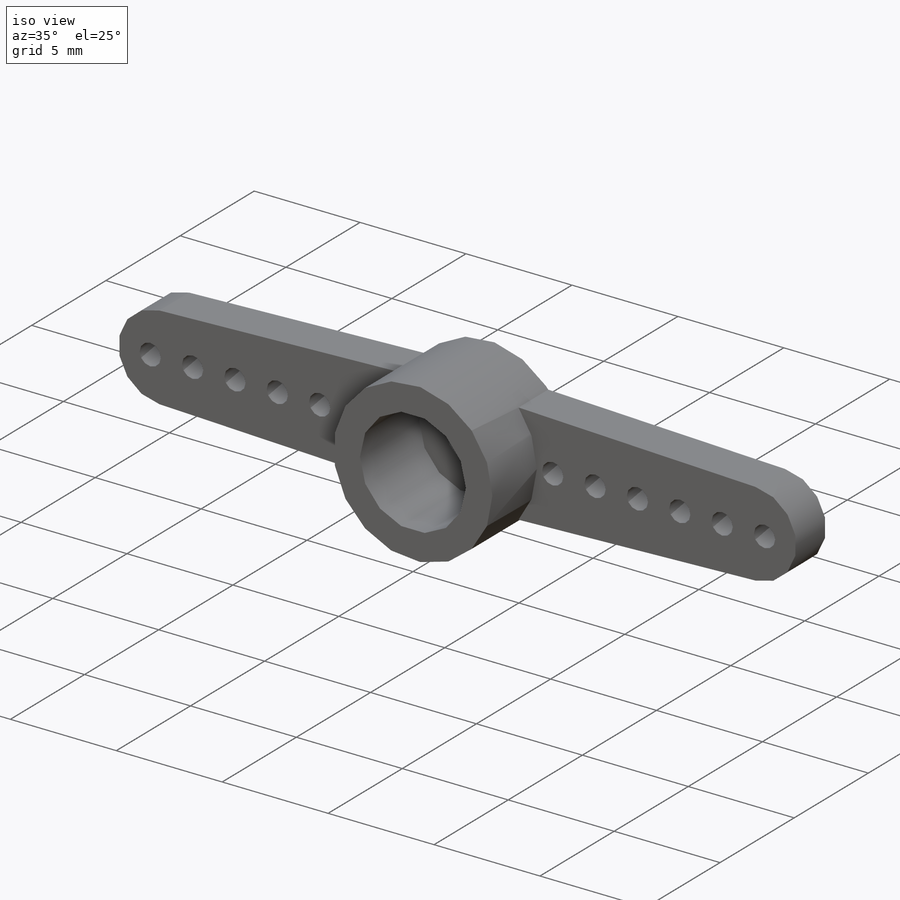
[diagram: iso view]
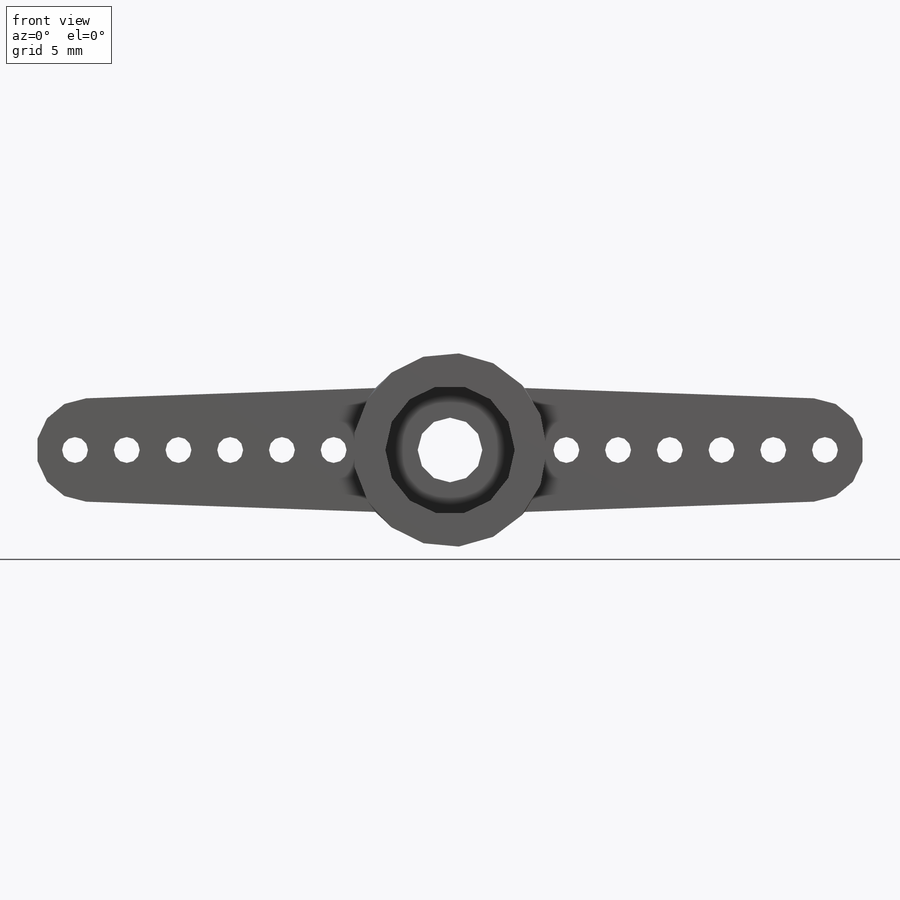
[diagram: front view]
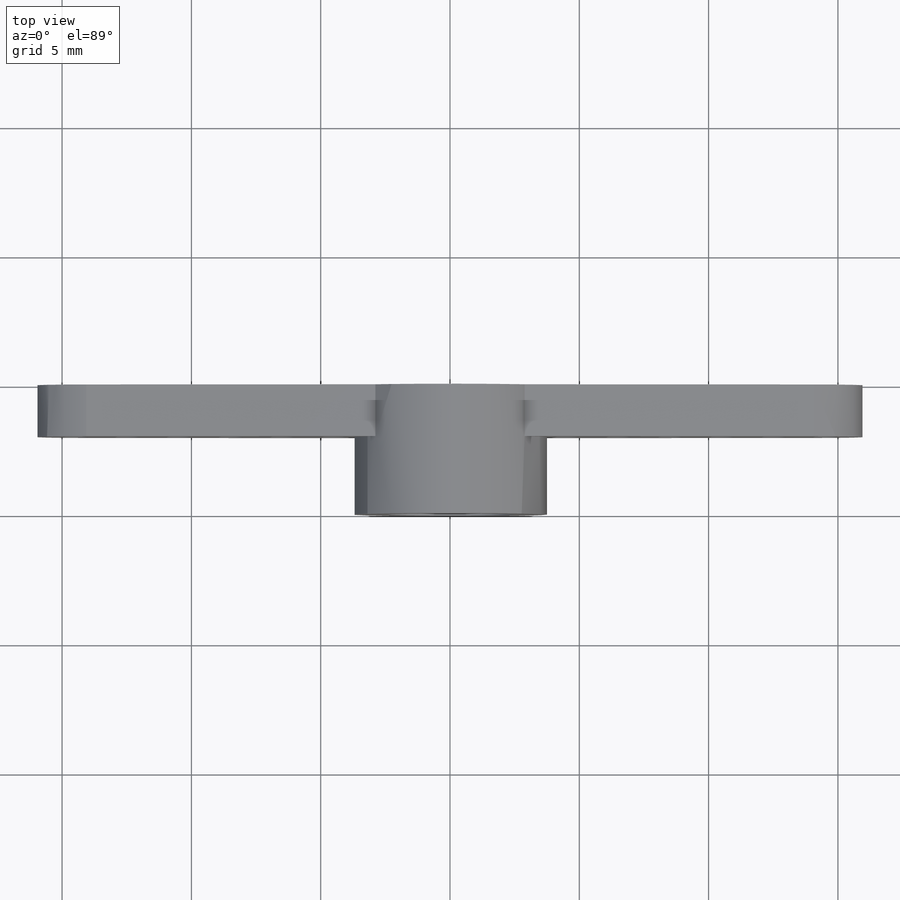
[diagram: top view]
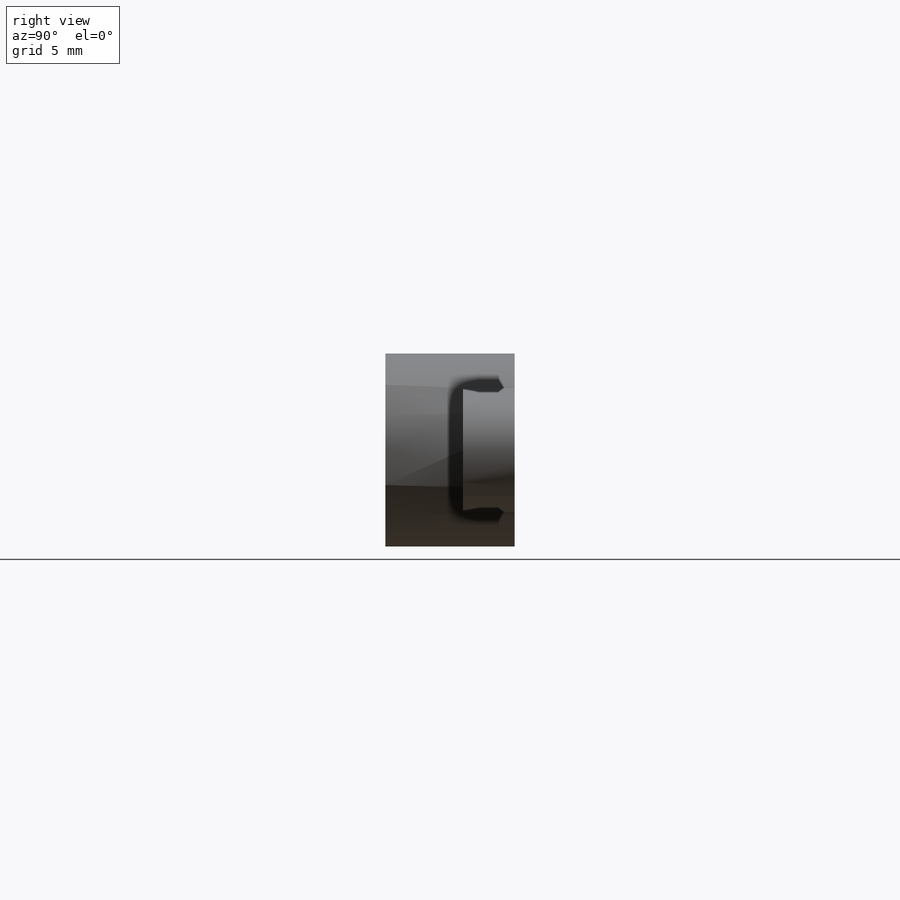
[diagram: right view]
SOLIDWORKS PART (.sldprt)
format: sldprt  version: not decoded by parser v0  size: 355,840 bytes
history: native  units: mm
features: sketch x8, extrude x4, plane x3, cut_extrude x3, material x1 (+10 scaffold rows collapsed)
feature tree (29):
  scaffold x10  (default folders/planes/origin — collapsed)
  material  "Material <not specified>"
  plane  "Спереди"
  plane  "Сверху"
  plane  "Справа"
  sketch  "Эскиз1"  dims[D1=7.5mm D2=5.0mm D4=2.0mm D3=14.0mm]
  extrude  "Бобышка-Вытянуть3"  Depth=2mm
  sketch  "Эскиз2"  dims[D1=5.0mm]
  extrude  "Бобышка-Вытянуть5"  Depth=3mm
  sketch  "Эскиз3"
  extrude  "Бобышка-Вытянуть6"  Depth=2mm
  sketch  "Эскиз4"  dims[c1.D2=1.0mm c1.D8=1.0mm c1.D9=1.0mm c1.D10=1.0mm c1.D11=1.0mm c1.D12=1.0mm c1.D1=1.5mm c1.D3=2.0mm c1.D4=2.0mm c1.D5=2.0mm c1.D6=2.0mm c1.D7=2.0mm c2.D8=1.5mm]
  cut_extrude  "Вырез-Вытянуть1"  Depth=2mm
  sketch  "Эскиз5"
  extrude  "Бобышка-Вытянуть7"  Depth=1mm
  sketch  "Эскиз6"  dims[D1=5.0mm]
  cut_extrude  "Вырез-Вытянуть2"  Depth=0.5mm
  sketch  "Эскиз7"  dims[D1=2.5mm]
  cut_extrude  "Вырез-Вытянуть3"  Depth=5mm
  sketch  "Эскиз8"
decode coverage: 12 of 15 modeling features carry decoded parameters
note: suppression state not decoded; provenance and decode notes live in map.json
